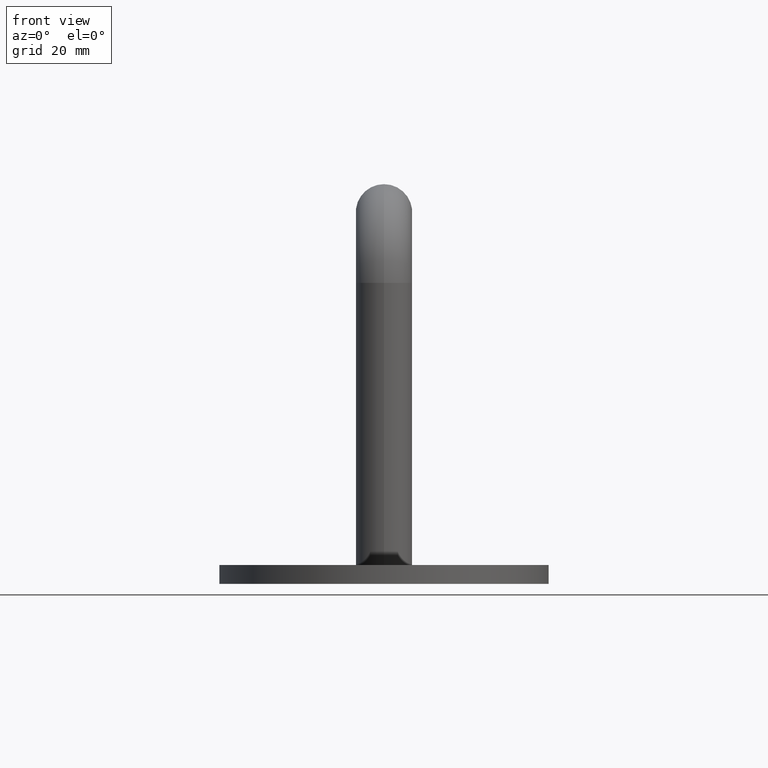
[diagram: clean part render]
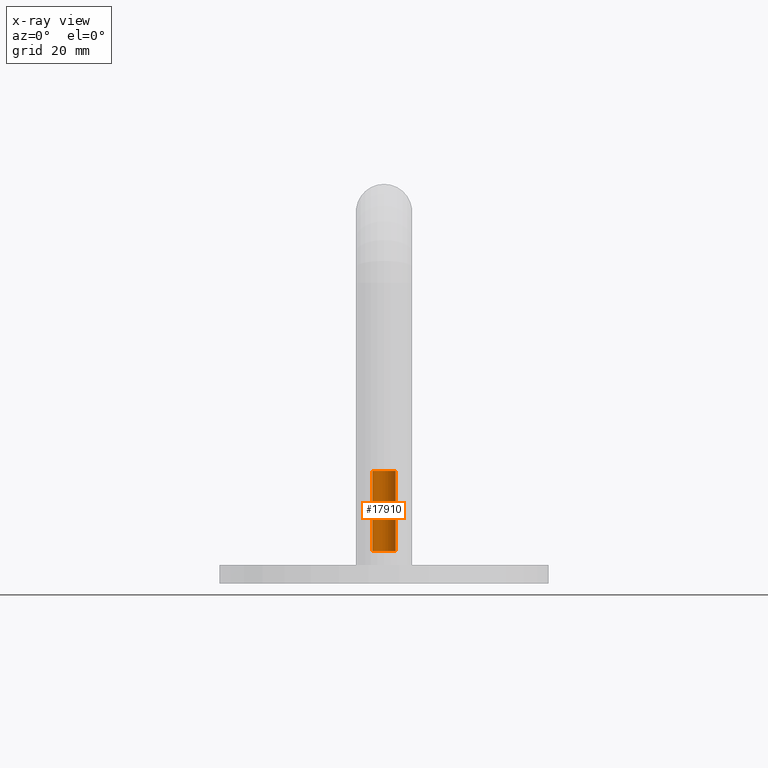
[diagram: x-ray — body ghosted, one internal face saturated and labeled with its STEP entity id]
A machine part, front view, then the same camera in x-ray: the body is ghosted and one INTERNAL B-rep face — a face not visible from any outside direction — is saturated and labeled: STEP entity #17910.
In plain terms, the highlighted cylindrical surface (edge-blend (fillet) strip) has radius 2.5 mm, axis along (-0, -0, -1).
Its self-contained STEP definition (entity closure, byte-faithful):
#229 = CARTESIAN_POINT ( 'NONE',  ( 2.499999999999995115, 3.061616997868377225E-16, 20.00000000000000000 ) ) ;
#1153 = VERTEX_POINT ( 'NONE', #14779 ) ;
#1181 = AXIS2_PLACEMENT_3D ( 'NONE', #16674, #18053, #16543 ) ;
#1388 = CIRCLE ( 'NONE', #2040, 2.499999999999992895 ) ;
#1441 = ORIENTED_EDGE ( 'NONE', *, *, #18964, .F. ) ;
#1750 = CARTESIAN_POINT ( 'NONE',  ( 0.000000000000000000, 0.000000000000000000, 3.000000000000008882 ) ) ;
#1777 = CARTESIAN_POINT ( 'NONE',  ( -2.499999999999992895, 0.000000000000000000, 0.000000000000000000 ) ) ;
#1899 = DIRECTION ( 'NONE',  ( -0.000000000000000000, -0.000000000000000000, -1.000000000000000000 ) ) ;
#2040 = AXIS2_PLACEMENT_3D ( 'NONE', #1750, #14723, #13432 ) ;
#2067 = DIRECTION ( 'NONE',  ( -0.000000000000000000, -0.000000000000000000, -1.000000000000000000 ) ) ;
#2341 = ORIENTED_EDGE ( 'NONE', *, *, #5577, .F. ) ;
#3295 = VERTEX_POINT ( 'NONE', #16029 ) ;
#3439 = EDGE_CURVE ( 'NONE', #3295, #10082, #12642, .T. ) ;
#3964 = DIRECTION ( 'NONE',  ( -1.000000000000000000, 0.000000000000000000, 0.000000000000000000 ) ) ;
#4873 = ORIENTED_EDGE ( 'NONE', *, *, #6234, .T. ) ;
#5055 = CARTESIAN_POINT ( 'NONE',  ( 2.499999999999992895, 4.898587196589407898E-16, 3.000000000000008882 ) ) ;
#5304 = ORIENTED_EDGE ( 'NONE', *, *, #3439, .F. ) ;
#5577 = EDGE_CURVE ( 'NONE', #17929, #1153, #1388, .T. ) ;
#6040 = EDGE_LOOP ( 'NONE', ( #1441, #5304, #4873, #2341 ) ) ;
#6234 = EDGE_CURVE ( 'NONE', #3295, #1153, #10992, .T. ) ;
#8340 = CARTESIAN_POINT ( 'NONE',  ( 0.000000000000000000, 0.000000000000000000, 0.000000000000000000 ) ) ;
#10082 = VERTEX_POINT ( 'NONE', #229 ) ;
#10992 = LINE ( 'NONE', #1777, #15814 ) ;
#11275 = DIRECTION ( 'NONE',  ( -0.000000000000000000, -0.000000000000000000, -1.000000000000000000 ) ) ;
#11657 = LINE ( 'NONE', #18223, #16209 ) ;
#11907 = FACE_OUTER_BOUND ( 'NONE', #6040, .T. ) ;
#12642 = CIRCLE ( 'NONE', #1181, 2.499999999999995559 ) ;
#13432 = DIRECTION ( 'NONE',  ( -1.000000000000000000, 0.000000000000000000, 0.000000000000000000 ) ) ;
#14723 = DIRECTION ( 'NONE',  ( 0.000000000000000000, 0.000000000000000000, 1.000000000000000000 ) ) ;
#14779 = CARTESIAN_POINT ( 'NONE',  ( -2.499999999999992895, 0.000000000000000000, 3.000000000000008882 ) ) ;
#15814 = VECTOR ( 'NONE', #1899, 1000.000000000000000 ) ;
#16029 = CARTESIAN_POINT ( 'NONE',  ( -2.499999999999995559, 0.000000000000000000, 20.00000000000000000 ) ) ;
#16209 = VECTOR ( 'NONE', #11275, 1000.000000000000000 ) ;
#16226 = AXIS2_PLACEMENT_3D ( 'NONE', #8340, #2067, #3964 ) ;
#16543 = DIRECTION ( 'NONE',  ( -1.000000000000000000, 0.000000000000000000, 0.000000000000000000 ) ) ;
#16674 = CARTESIAN_POINT ( 'NONE',  ( 0.000000000000000000, 0.000000000000000000, 20.00000000000000000 ) ) ;
#17167 = CYLINDRICAL_SURFACE ( 'NONE', #16226, 2.499999999999992895 ) ;
#17910 = ADVANCED_FACE ( 'NONE', ( #11907 ), #17167, .F. ) ;
#17929 = VERTEX_POINT ( 'NONE', #5055 ) ;
#18053 = DIRECTION ( 'NONE',  ( -0.000000000000000000, -0.000000000000000000, -1.000000000000000000 ) ) ;
#18223 = CARTESIAN_POINT ( 'NONE',  ( 2.499999999999992895, 3.061616997868373773E-16, 0.000000000000000000 ) ) ;
#18964 = EDGE_CURVE ( 'NONE', #10082, #17929, #11657, .T. ) ;